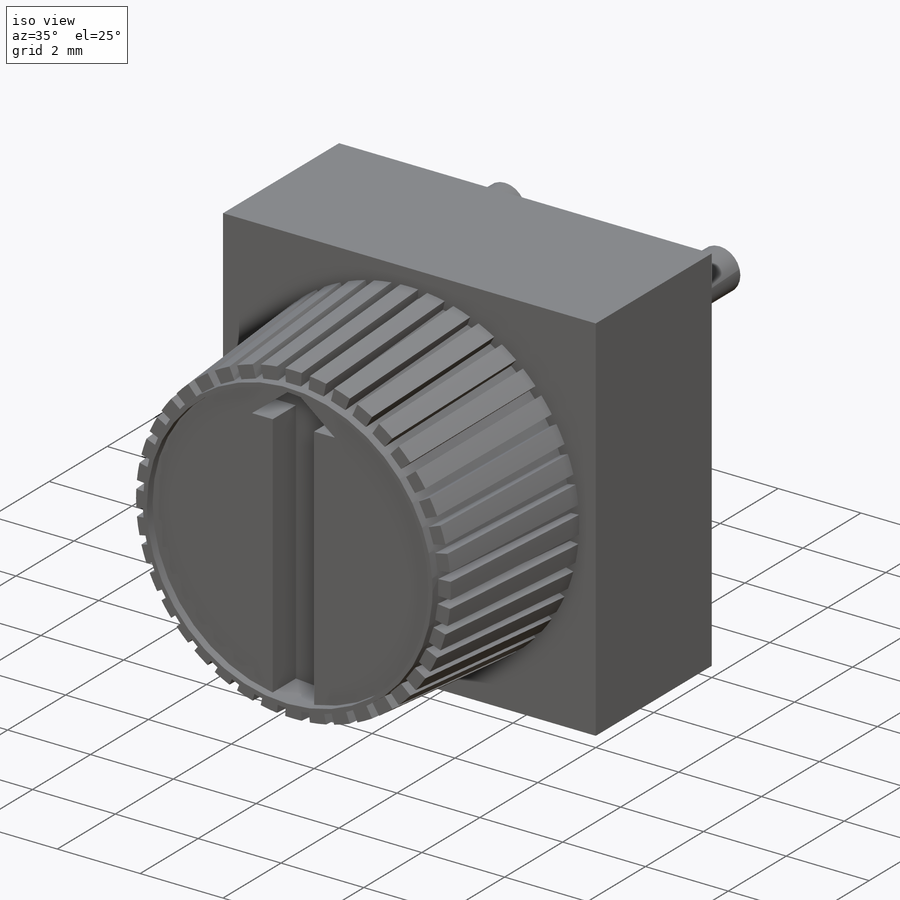
[diagram: iso view]
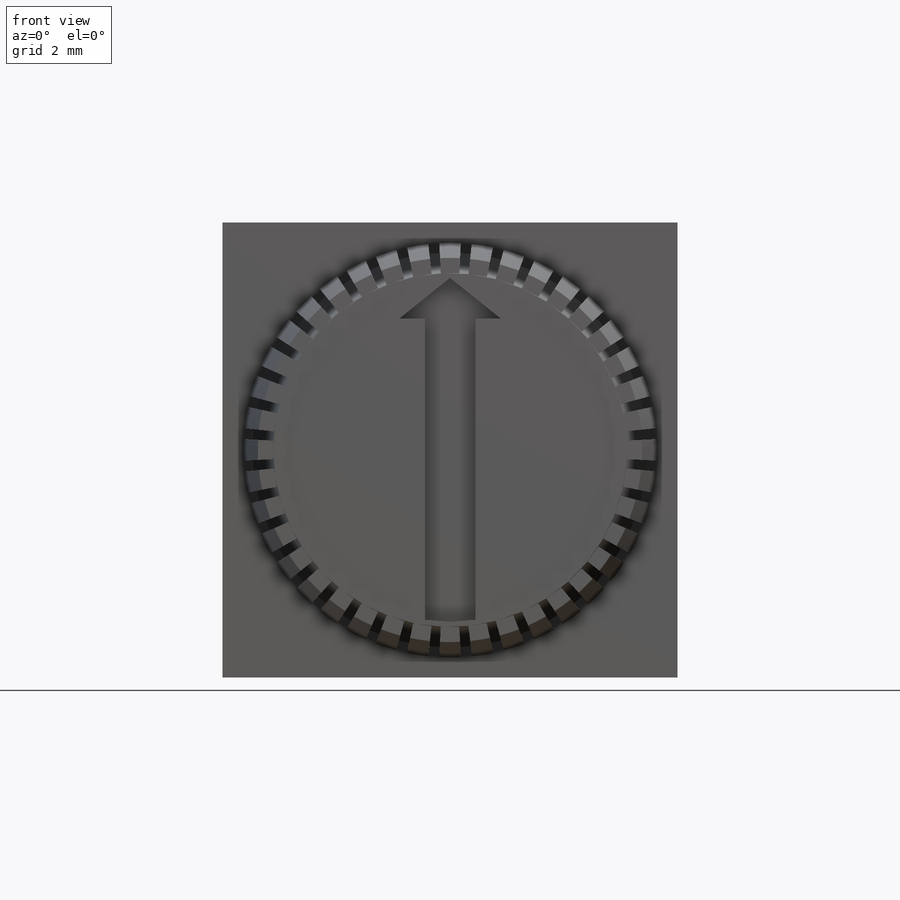
[diagram: front view]
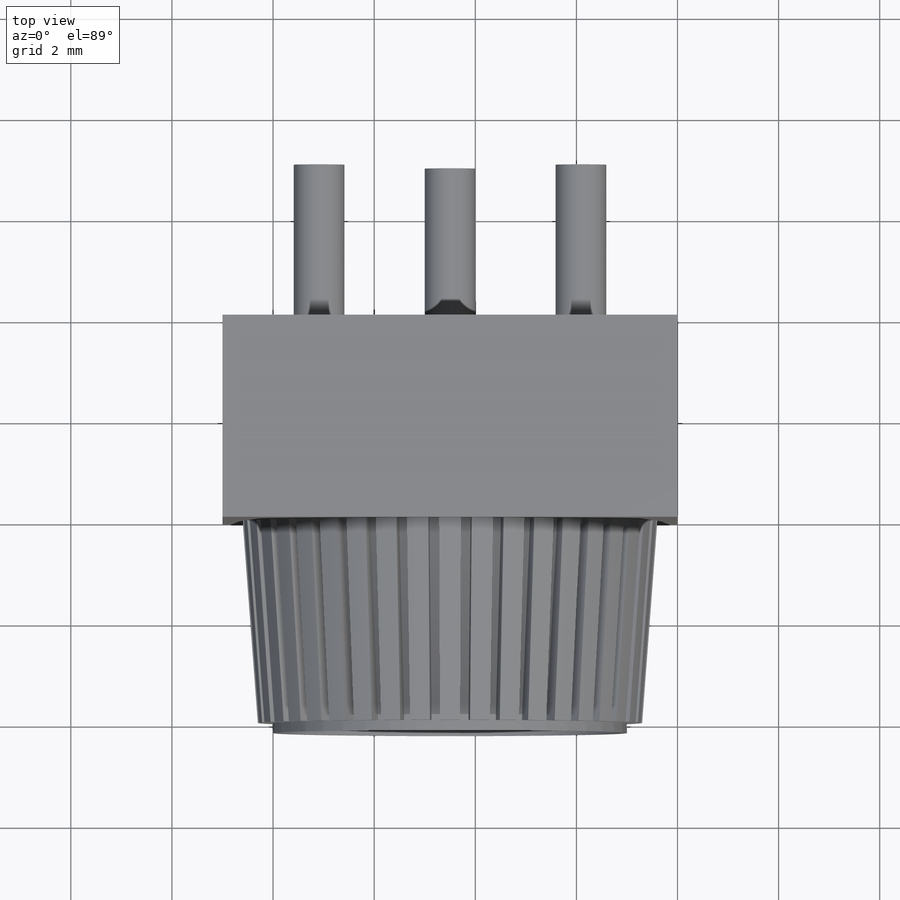
[diagram: top view]
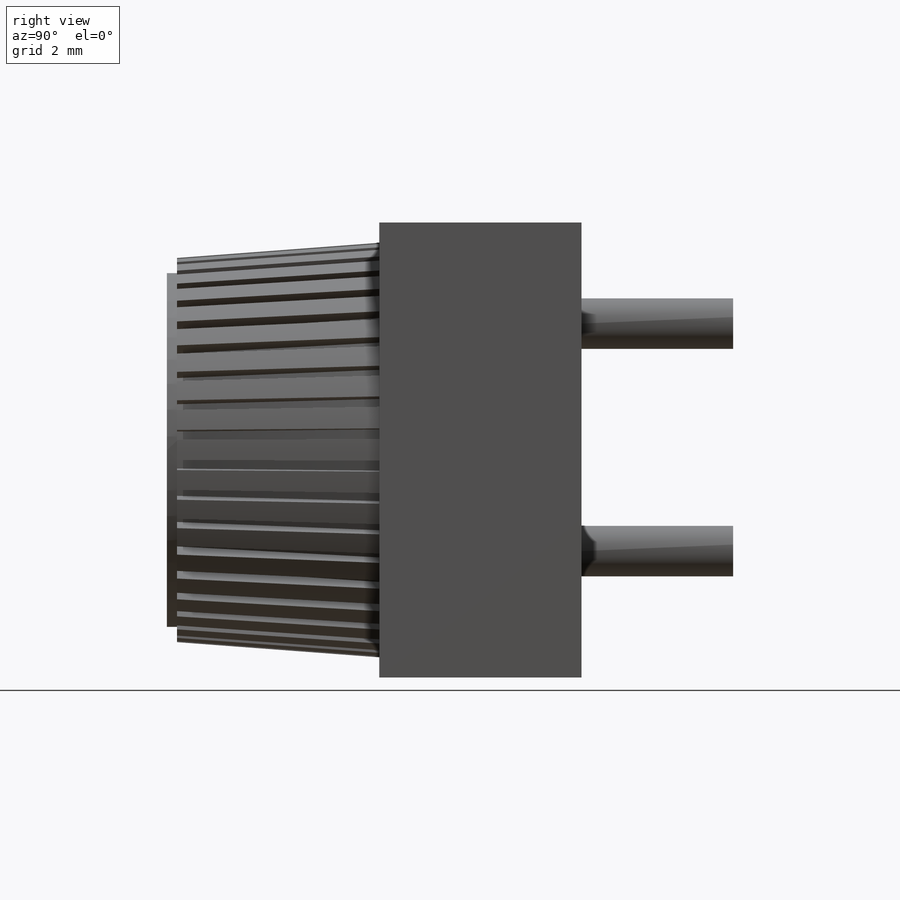
[diagram: right view]
SOLIDWORKS PART (.sldprt)
format: sldprt  version: not decoded by parser v0  size: 1,202,176 bytes
history: native  units: mm
features: sketch x7, plane x4, extrude x2, material x1, cut_extrude x1 (+8 scaffold rows collapsed)
feature tree (23):
  scaffold x8  (default folders/planes/origin — collapsed)
  material  "Matériau <non spécifié>"
  plane  "Plan de face"
  plane  "Plan de dessus"
  plane  "Plan de droite"
  sketch  "Esquisse1"  dims[D1=9.0mm D2=9.0mm]
  extrude  "Boss.-Extru.1"  Depth=4mm
  plane  "Plan1"  Offset=4mm
  sketch  "Esquisse5"
  sketch  "Esquisse6"  dims[c1.D8=3.5mm c1.D1=3.2mm c1.D2=3.2mm c1.D3=3.2mm c1.D4=3.8mm c2.D1=3.8mm c2.D5=3.2mm c3.D5=3.0deg c3.D6=~3.195615mm c4.D6=3.0deg c4.D7=~3.195615mm c5.D7=~13.478188deg c6.D7=~3.18247mm c7.D7=3.0deg c7.D8=3.2mm c7.D3=3.8mm c8.D7=3.8mm c8.D2=3.2mm c9.D2=3.2deg c10.D2=~3.18247mm c11.D2=3.0deg c11.D9=40.0]
  sketch  "Esquisse10"  dims[c1.D1=4.1mm c1.D3=3.9mm c1.D2=~4.044923mm c2.D2=~174.907553deg c3.D2=4.5mm c4.D2=3.0deg c4.D4=~4.352922mm c5.D4=3.0deg c5.D5=~4.329077mm c6.D5=3.0deg]
  sketch  "Esquisse9"  dims[D1=1.0mm D2=1.0mm D3=4.5mm D4=2.59mm D5=2.5mm]
  extrude  "Boss.-Extru.4"  Depth=3mm
  sketch  "Esquisse11"  dims[D1=0.2mm D5=0.1mm D6=10.0mm D7=5.0mm]
  sketch  "Esquisse12"  dims[D1=0.5mm D2=0.5mm D3=0.8mm]
  cut_extrude  "Enlèv. mat.-Extru.1"  Depth=0.8mm
decode coverage: 9 of 10 modeling features carry decoded parameters
note: ~ marks probable driven/reference dimensions
note: suppression state not decoded; provenance and decode notes live in map.json
